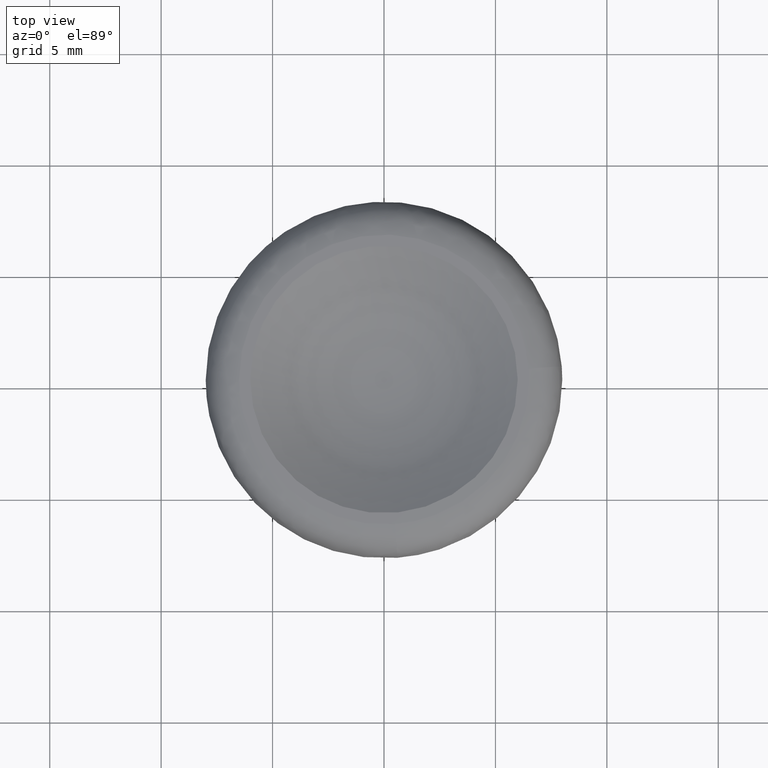
[diagram: clean part render]
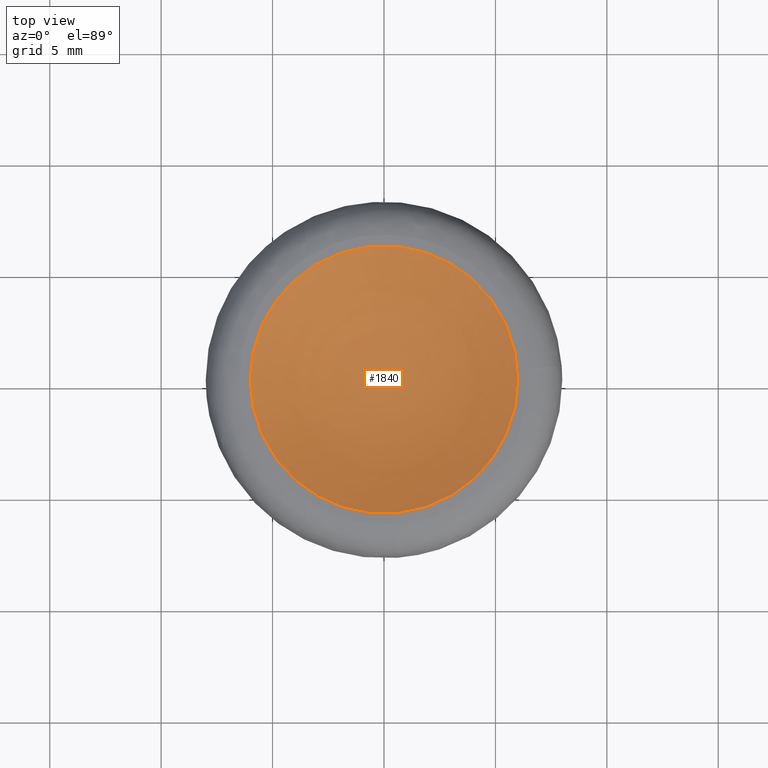
[diagram: same view with one face highlighted and labeled with its STEP entity id]
A machine part, top view. The second image highlights one B-rep face of the part: STEP entity #1840.
In plain terms, the highlighted face is a freeform B-spline surface patch.
Its self-contained STEP definition (entity closure, byte-faithful):
#1780=CARTESIAN_POINT('',(-5.779031761585397,5.779031761585392,11.737571362943021));
#1781=CARTESIAN_POINT('',(-3.231901177761275,6.463802355522542,9.869845407284254));
#1782=CARTESIAN_POINT('',(3.231901285012093,6.463802355522542,9.869845407284254));
#1783=CARTESIAN_POINT('',(5.779031912729345,5.779031720951855,11.737571473771837));
#1784=CARTESIAN_POINT('',(-6.463802355522550,3.231901177761268,9.869845407284261));
#1785=CARTESIAN_POINT('',(-3.666333339012923,3.666333339012913,7.500000000000000));
#1786=CARTESIAN_POINT('',(3.666333460680397,3.666333339012913,7.500000000000000));
#1787=CARTESIAN_POINT('',(6.463802519190617,3.231901152344483,9.869845545933886));
#1788=CARTESIAN_POINT('',(-6.463802355522550,-3.231901285012102,9.869845407284270));
#1789=CARTESIAN_POINT('',(-3.666333339012923,-3.666333460680407,7.500000000000007));
#1790=CARTESIAN_POINT('',(3.666333460680397,-3.666333460680407,7.500000000000007));
#1791=CARTESIAN_POINT('',(6.463802519190617,-3.231901259595316,9.869845545933886));
#1792=CARTESIAN_POINT('',(-5.779031720951861,-5.779031912729351,11.737571473771862));
#1793=CARTESIAN_POINT('',(-3.231901152344490,-6.463802519190624,9.869845545933897));
#1794=CARTESIAN_POINT('',(3.231901259595307,-6.463802519190624,9.869845545933897));
#1795=CARTESIAN_POINT('',(5.779031872095808,-5.779031872095812,11.737571584600680));
#1803=(BOUNDED_SURFACE()B_SPLINE_SURFACE(2,2,((#1780,#1784,#1788,#1792),(#1781,#1785,#1789,#1793),(#1782,#1786,#1790,#1794),(#1783,#1787,#1791,#1795)),.UNSPECIFIED.,.F.,.F.,.U.)B_SPLINE_SURFACE_WITH_KNOTS((3,1,3),(3,1,3),(0.0,6.870875153697917,13.741750535406201),(0.0,6.870875153697917,13.741750535406201),.UNSPECIFIED.)GEOMETRIC_REPRESENTATION_ITEM()RATIONAL_B_SPLINE_SURFACE(((1.268840003055154,1.134420001527577,1.134420001527577,1.268840011976624),(1.134420001527577,1.0,1.0,1.134420010449047),(1.134420001527577,1.0,1.0,1.134420010449047),(1.268840011976624,1.134420010449047,1.134420010449047,1.268840020898094)))REPRESENTATION_ITEM('')SURFACE());
#1804=CARTESIAN_POINT('',(6.0,0.0,9.500000000000000));
#1805=VERTEX_POINT('',#1804);
#1806=CARTESIAN_POINT('',(-6.0,0.0,9.500000000000000));
#1807=VERTEX_POINT('',#1806);
#1808=CARTESIAN_POINT('',(6.0,0.0,9.500000000000000));
#1809=CARTESIAN_POINT('',(6.0,-6.0,9.500000000000000));
#1810=CARTESIAN_POINT('',(0.0,-6.0,9.500000000000000));
#1811=CARTESIAN_POINT('',(-6.0,-6.0,9.500000000000000));
#1812=CARTESIAN_POINT('',(-6.0,0.0,9.500000000000000));
#1820=(BOUNDED_CURVE()B_SPLINE_CURVE(2,(#1808,#1809,#1810,#1811,#1812),.UNSPECIFIED.,.F.,.U.)B_SPLINE_CURVE_WITH_KNOTS((3,2,3),(0.500000000000000,0.750000000000000,1.0),.UNSPECIFIED.)CURVE()GEOMETRIC_REPRESENTATION_ITEM()RATIONAL_B_SPLINE_CURVE((1.0,0.707106781186548,1.0,0.707106781186548,1.0))REPRESENTATION_ITEM(''));
#1821=EDGE_CURVE('',#1805,#1807,#1820,.T.);
#1822=ORIENTED_EDGE('',*,*,#1821,.F.);
#1823=CARTESIAN_POINT('',(-6.0,0.0,9.500000000000000));
#1824=CARTESIAN_POINT('',(-6.0,6.0,9.500000000000000));
#1825=CARTESIAN_POINT('',(0.0,6.0,9.500000000000000));
#1826=CARTESIAN_POINT('',(6.0,6.0,9.500000000000000));
#1827=CARTESIAN_POINT('',(6.0,0.0,9.500000000000000));
#1835=(BOUNDED_CURVE()B_SPLINE_CURVE(2,(#1823,#1824,#1825,#1826,#1827),.UNSPECIFIED.,.F.,.U.)B_SPLINE_CURVE_WITH_KNOTS((3,2,3),(0.0,0.250000000000000,0.500000000000000),.UNSPECIFIED.)CURVE()GEOMETRIC_REPRESENTATION_ITEM()RATIONAL_B_SPLINE_CURVE((1.0,0.707106781186548,1.0,0.707106781186548,1.0))REPRESENTATION_ITEM(''));
#1836=EDGE_CURVE('',#1807,#1805,#1835,.T.);
#1837=ORIENTED_EDGE('',*,*,#1836,.F.);
#1838=EDGE_LOOP('',(#1822,#1837));
#1839=FACE_OUTER_BOUND('',#1838,.T.);
#1840=ADVANCED_FACE('',(#1839),#1803,.F.);